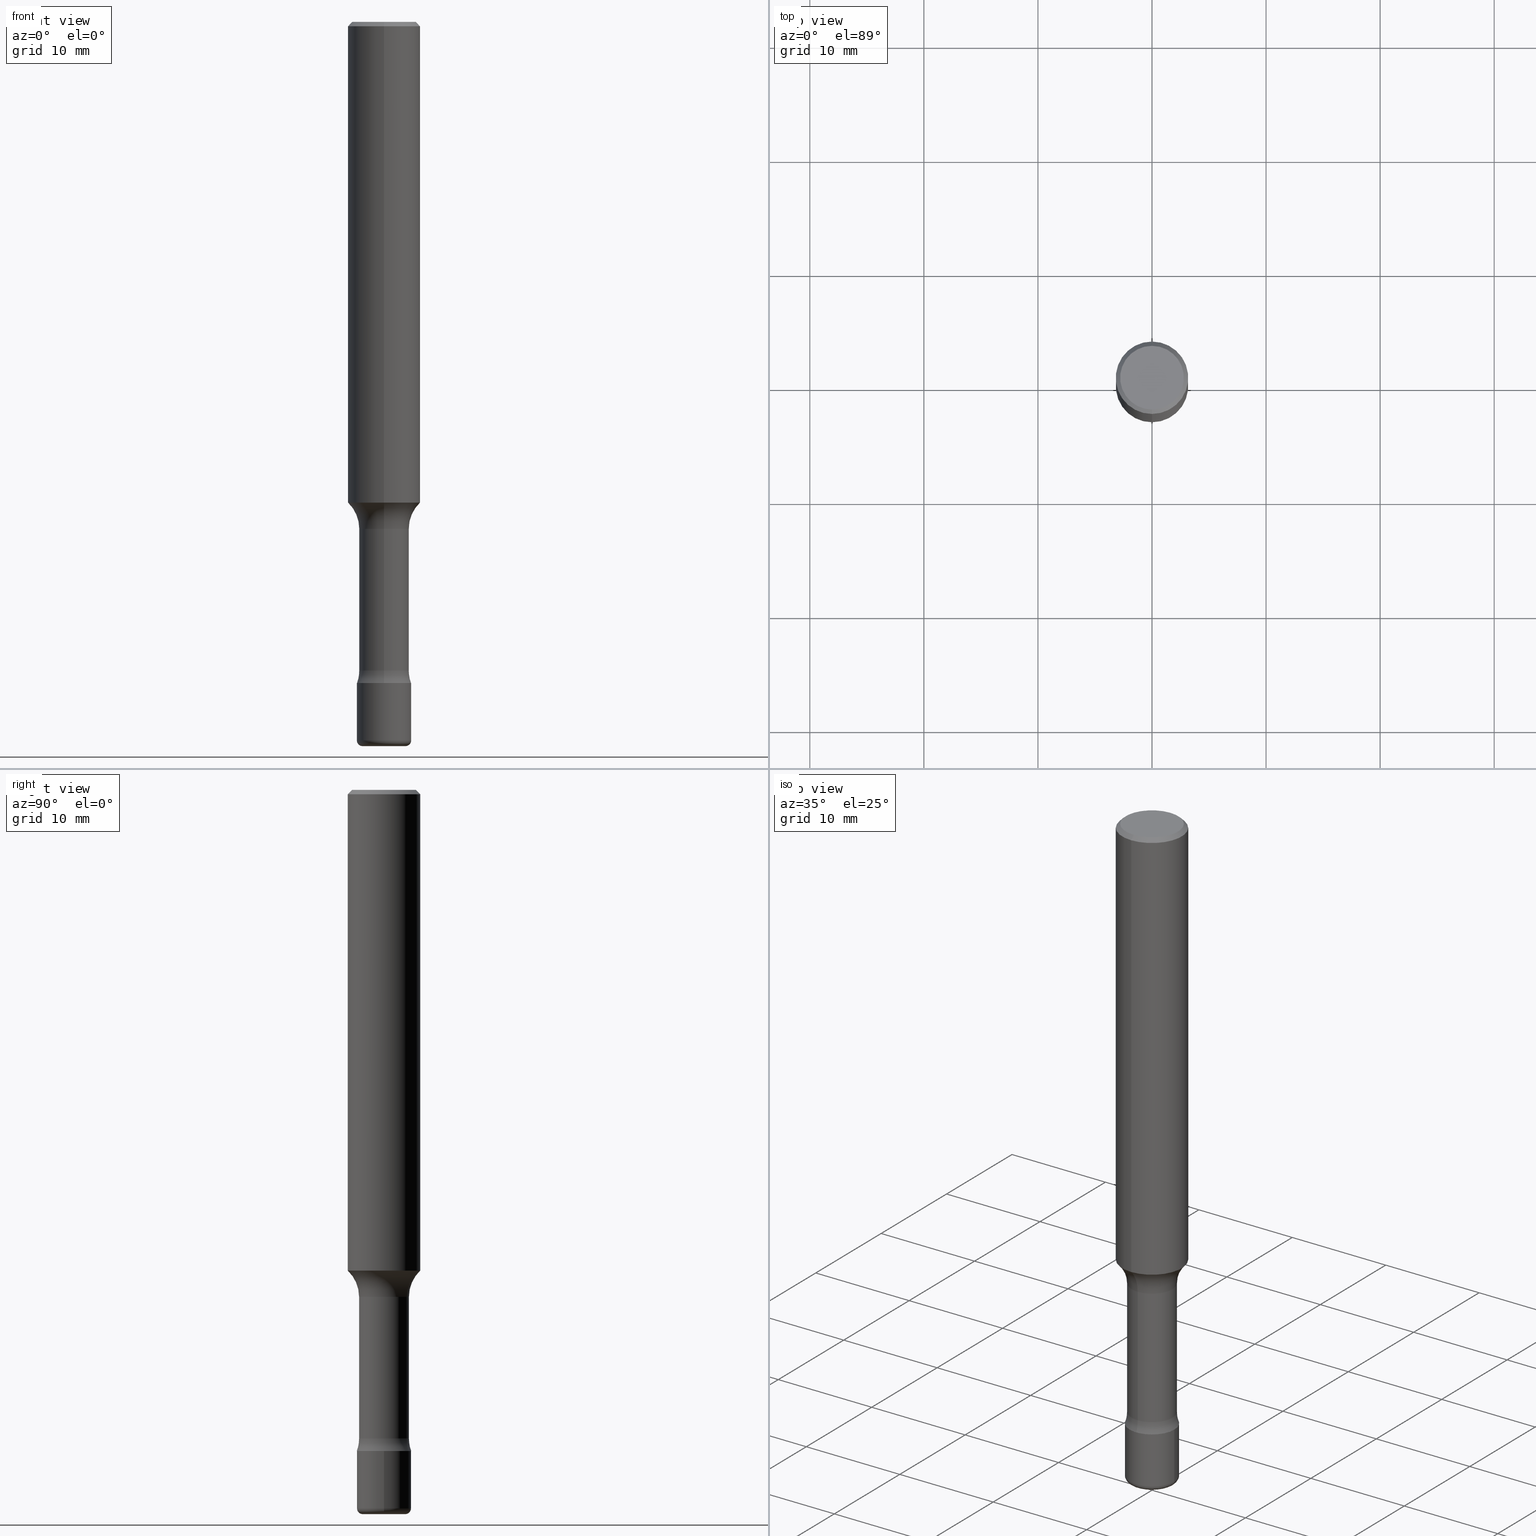
[diagram: canonical four-view strip — front | top / right | iso, engineering-drawing reading convention]
A machine part, canonical four-view strip (front | top / right | iso — engineering-drawing reading convention). The complete STEP part file that produces these views, byte-faithful:
ISO-10303-21;
HEADER;
FILE_DESCRIPTION (( 'STEP AP203' ),
    '1' );
FILE_NAME ('36781.STEP',
    '2024-03-04T12:38:45',
    ( '' ),
    ( '' ),
    'SwSTEP 2.0',
    'SolidWorks 2023',
    '' );
FILE_SCHEMA (( 'CONFIG_CONTROL_DESIGN' ));
ENDSEC;

DATA;
#1 = ORIENTED_EDGE ( 'NONE', *, *, #129, .T. ) ;
#2 = DIRECTION ( 'NONE',  ( -2.445815413942617356E-29, 3.490984976806744767E-15, 1.000000000000000000 ) ) ;
#3 = VERTEX_POINT ( 'NONE', #13 ) ;
#4 = CC_DESIGN_PERSON_AND_ORGANIZATION_ASSIGNMENT ( #232, #183, ( #230 ) ) ;
#5 = CARTESIAN_POINT ( 'NONE',  ( 7.496225862269470868E-16, 0.08599999999999387301, -1.750000000000000444 ) ) ;
#6 = CARTESIAN_POINT ( 'NONE',  ( -1.169113584055446105E-44, 1.669184350826100908E-30, 4.780733988912460139E-16 ) ) ;
#7 = VECTOR ( 'NONE', #10, 39.37007874015748143 ) ;
#8 = LINE ( 'NONE', #167, #488 ) ;
#9 = AXIS2_PLACEMENT_3D ( 'NONE', #157, #510, #436 ) ;
#10 = DIRECTION ( 'NONE',  ( 4.937700262164543309E-15, 0.7071067811865444641, -0.7071067811865505703 ) ) ;
#11 = DIRECTION ( 'NONE',  ( 7.105427357601001859E-15, 1.000000000000000000, 0.000000000000000000 ) ) ;
#12 = DIRECTION ( 'NONE',  ( 1.000000000000000000, -6.982962677686265922E-15, 4.876176775795935793E-29 ) ) ;
#13 = CARTESIAN_POINT ( 'NONE',  ( 6.661338147751496376E-16, 0.09374999999999200639, -2.282000000000000473 ) ) ;
#14 = CARTESIAN_POINT ( 'NONE',  ( 4.058307676616892084E-29, -5.792543071552269499E-15, -1.659286164230587390 ) ) ;
#15 = CONICAL_SURFACE ( 'NONE', #243, 0.1250000000000000000, 0.7853981633974473908 ) ;
#16 = DIRECTION ( 'NONE',  ( 2.445815413942617356E-29, -3.490984976806744767E-15, -1.000000000000000000 ) ) ;
#17 = DATE_TIME_ROLE ( 'classification_date' ) ;
#18 = EDGE_CURVE ( 'NONE', #31, #249, #446, .T. ) ;
#19 = ORIENTED_EDGE ( 'NONE', *, *, #117, .T. ) ;
#20 = DIRECTION ( 'NONE',  ( 1.000000000000000000, -6.982962677686256455E-15, 0.000000000000000000 ) ) ;
#21 = DIRECTION ( 'NONE',  ( -6.982962677686265922E-15, -1.000000000000000000, 4.370956789862821150E-15 ) ) ;
#22 = PERSON_AND_ORGANIZATION_ROLE ( 'creator' ) ;
#23 = AXIS2_PLACEMENT_3D ( 'NONE', #228, #287, #63 ) ;
#24 = EDGE_CURVE ( 'NONE', #306, #284, #410, .T. ) ;
#25 = CARTESIAN_POINT ( 'NONE',  ( 6.113672015462842613E-29, -8.728703347107866520E-15, -2.500000000000000444 ) ) ;
#26 = APPROVAL_ROLE ( '' ) ;
#27 = ADVANCED_FACE ( 'NONE', ( #254 ), #521, .F. ) ;
#28 = DIRECTION ( 'NONE',  ( -2.445815413942617356E-29, 3.490984976806744767E-15, 1.000000000000000000 ) ) ;
#29 = PERSON_AND_ORGANIZATION ( #217, #409 ) ;
#30 = CARTESIAN_POINT ( 'NONE',  ( 8.204981146281365554E-16, 0.1100000000000000283, -3.985137795026849284E-16 ) ) ;
#31 = VERTEX_POINT ( 'NONE', #54 ) ;
#32 = EDGE_LOOP ( 'NONE', ( #442, #206, #71, #474 ) ) ;
#33 =( GEOMETRIC_REPRESENTATION_CONTEXT ( 3 ) GLOBAL_UNCERTAINTY_ASSIGNED_CONTEXT ( ( #263 ) ) GLOBAL_UNIT_ASSIGNED_CONTEXT ( ( #465, #226, #353 ) ) REPRESENTATION_CONTEXT ( 'NONE', 'WORKASPACE' ) );
#34 = DIRECTION ( 'NONE',  ( 1.000000000000000000, -6.982962677686260400E-15, 0.000000000000000000 ) ) ;
#35 = ORIENTED_EDGE ( 'NONE', *, *, #137, .T. ) ;
#36 = ORIENTED_EDGE ( 'NONE', *, *, #215, .T. ) ;
#37 = DIRECTION ( 'NONE',  ( -2.445468806185136597E-29, 3.491481338843145583E-15, 1.000000000000000000 ) ) ;
#38 = EDGE_CURVE ( 'NONE', #31, #3, #381, .T. ) ;
#39 = ORIENTED_EDGE ( 'NONE', *, *, #186, .T. ) ;
#40 = EDGE_LOOP ( 'NONE', ( #39, #78, #355, #121 ) ) ;
#41 = TOROIDAL_SURFACE ( 'NONE', #297, 0.07375000000000000999, 0.02000000000000017042 ) ;
#42 = APPROVAL ( #421, 'UNSPECIFIED' ) ;
#43 = CARTESIAN_POINT ( 'NONE',  ( 5.474599102815097822E-29, -7.816276599718466484E-15, -2.238670593126607766 ) ) ;
#44 = AXIS2_PLACEMENT_3D ( 'NONE', #25, #154, #432 ) ;
#45 = VERTEX_POINT ( 'NONE', #341 ) ;
#46 = AXIS2_PLACEMENT_3D ( 'NONE', #308, #338, #100 ) ;
#47 = EDGE_CURVE ( 'NONE', #242, #484, #496, .T. ) ;
#48 = FACE_OUTER_BOUND ( 'NONE', #67, .T. ) ;
#49 = CIRCLE ( 'NONE', #120, 0.1100000000000000283 ) ;
#50 = CIRCLE ( 'NONE', #76, 0.1100000000000000283 ) ;
#51 = CC_DESIGN_PERSON_AND_ORGANIZATION_ASSIGNMENT ( #107, #266, ( #340 ) ) ;
#52 = CARTESIAN_POINT ( 'NONE',  ( 4.279570410823989044E-29, -6.110092342975505460E-15, -1.750000000000000222 ) ) ;
#53 = FACE_OUTER_BOUND ( 'NONE', #429, .T. ) ;
#54 = CARTESIAN_POINT ( 'NONE',  ( 6.110667527537350203E-16, 0.08599999999999224931, -2.238670593126608210 ) ) ;
#55 = CALENDAR_DATE ( 2024, 4, 3 ) ;
#56 = DIRECTION ( 'NONE',  ( 2.445815413942617075E-29, -3.490984976806744767E-15, -1.000000000000000000 ) ) ;
#57 = PLANE ( 'NONE',  #104 ) ;
#58 = VECTOR ( 'NONE', #223, 39.37007874015748143 ) ;
#59 = ORIENTED_EDGE ( 'NONE', *, *, #492, .T. ) ;
#60 = FACE_OUTER_BOUND ( 'NONE', #281, .T. ) ;
#61 = DIRECTION ( 'NONE',  ( -2.445815413942617356E-29, 3.490984976806744767E-15, 1.000000000000000000 ) ) ;
#62 = PERSON_AND_ORGANIZATION ( #217, #409 ) ;
#63 = DIRECTION ( 'NONE',  ( -6.982962677686265922E-15, -1.000000000000000000, 3.490984976806744767E-15 ) ) ;
#64 = APPROVAL_DATE_TIME ( #509, #42 ) ;
#65 = CIRCLE ( 'NONE', #44, 0.07375000000000000999 ) ;
#66 = CARTESIAN_POINT ( 'NONE',  ( 3.668723120913929659E-31, -5.236477465210122771E-17, -0.01500000000000001506 ) ) ;
#67 = EDGE_LOOP ( 'NONE', ( #363, #36, #79, #245 ) ) ;
#68 = DATE_AND_TIME ( #426, #364 ) ;
#69 = CARTESIAN_POINT ( 'NONE',  ( 0.09375000000000011102, -9.313526471364089937E-15, -2.480000000000000426 ) ) ;
#70 = ORIENTED_EDGE ( 'NONE', *, *, #186, .F. ) ;
#71 = ORIENTED_EDGE ( 'NONE', *, *, #134, .T. ) ;
#72 = DIRECTION ( 'NONE',  ( 2.445815413942617356E-29, -3.490984976806744767E-15, -1.000000000000000000 ) ) ;
#73 = ORIENTED_EDGE ( 'NONE', *, *, #314, .T. ) ;
#74 = ORIENTED_EDGE ( 'NONE', *, *, #504, .T. ) ;
#75 = ADVANCED_FACE ( 'NONE', ( #213 ), #302, .T. ) ;
#76 = AXIS2_PLACEMENT_3D ( 'NONE', #77, #467, #351 ) ;
#77 = CARTESIAN_POINT ( 'NONE',  ( 3.564331325213167551E-46, -5.040094789658283719E-32, -1.450543205394286918E-17 ) ) ;
#78 = ORIENTED_EDGE ( 'NONE', *, *, #325, .T. ) ;
#79 = ORIENTED_EDGE ( 'NONE', *, *, #47, .T. ) ;
#80 = CARTESIAN_POINT ( 'NONE',  ( -1.169113584055446105E-44, 1.669184350826100908E-30, 4.780733988912460139E-16 ) ) ;
#81 = VERTEX_POINT ( 'NONE', #172 ) ;
#82 = CC_DESIGN_PERSON_AND_ORGANIZATION_ASSIGNMENT ( #62, #22, ( #230 ) ) ;
#83 = CARTESIAN_POINT ( 'NONE',  ( 0.09375000000000002776, -6.546527510330876027E-16, 4.571415727308691207E-30 ) ) ;
#84 = ORIENTED_EDGE ( 'NONE', *, *, #305, .F. ) ;
#85 = CONICAL_SURFACE ( 'NONE', #140, 0.1250000000000000000, 0.7853981633974473908 ) ;
#86 = ADVANCED_FACE ( 'NONE', ( #336 ), #41, .T. ) ;
#87 = CYLINDRICAL_SURFACE ( 'NONE', #450, 0.1250000000000000000 ) ;
#88 = AXIS2_PLACEMENT_3D ( 'NONE', #362, #207, #164 ) ;
#89 = EDGE_CURVE ( 'NONE', #484, #284, #202, .T. ) ;
#90 = CARTESIAN_POINT ( 'NONE',  ( 8.728703347107836346E-16, 0.1249999999999999445, -0.01500000000000045047 ) ) ;
#91 = AXIS2_PLACEMENT_3D ( 'NONE', #388, #28, #237 ) ;
#92 = CC_DESIGN_SECURITY_CLASSIFICATION ( #340, ( #230 ) ) ;
#93 = FACE_OUTER_BOUND ( 'NONE', #437, .T. ) ;
#94 = AXIS2_PLACEMENT_3D ( 'NONE', #222, #56, #219 ) ;
#95 = DIRECTION ( 'NONE',  ( 1.000000000000000000, -6.982962677686269077E-15, 4.883557194083113462E-29 ) ) ;
#96 = COORDINATED_UNIVERSAL_TIME_OFFSET ( 5, 0, .BEHIND. ) ;
#97 = DIRECTION ( 'NONE',  ( 1.000000000000000000, -6.982962677686261189E-15, 0.000000000000000000 ) ) ;
#98 = EDGE_CURVE ( 'NONE', #238, #484, #415, .T. ) ;
#99 = DIRECTION ( 'NONE',  ( 1.000000000000000000, -7.105427357601001070E-15, 4.926309429860291398E-29 ) ) ;
#100 = DIRECTION ( 'NONE',  ( 1.000000000000000000, -6.982962677686269077E-15, 4.883557194083113462E-29 ) ) ;
#101 = ADVANCED_FACE ( 'NONE', ( #378 ), #342, .T. ) ;
#102 = CIRCLE ( 'NONE', #318, 0.08599999999999997924 ) ;
#103 = APPLICATION_PROTOCOL_DEFINITION ( 'international standard', 'config_control_design', 1994, #397 ) ;
#104 = AXIS2_PLACEMENT_3D ( 'NONE', #220, #179, #503 ) ;
#105 = DIRECTION ( 'NONE',  ( -2.445468806185136597E-29, 3.491481338843145583E-15, 1.000000000000000000 ) ) ;
#106 = PERSON_AND_ORGANIZATION ( #217, #409 ) ;
#107 = PERSON_AND_ORGANIZATION ( #217, #409 ) ;
#108 = LINE ( 'NONE', #276, #339 ) ;
#109 = CALENDAR_DATE ( 2024, 4, 3 ) ;
#110 = TOROIDAL_SURFACE ( 'NONE', #375, 0.2110000000000000764, 0.1250000000000000000 ) ;
#111 = FACE_OUTER_BOUND ( 'NONE', #316, .T. ) ;
#112 = ORIENTED_EDGE ( 'NONE', *, *, #376, .T. ) ;
#113 = CALENDAR_DATE ( 2024, 4, 3 ) ;
#114 = DIRECTION ( 'NONE',  ( 7.105427357601001859E-15, 1.000000000000000000, -3.491481338843145583E-15 ) ) ;
#115 = ORIENTED_EDGE ( 'NONE', *, *, #18, .T. ) ;
#116 = ORIENTED_EDGE ( 'NONE', *, *, #174, .T. ) ;
#117 = EDGE_CURVE ( 'NONE', #306, #238, #49, .T. ) ;
#118 = CARTESIAN_POINT ( 'NONE',  ( -8.728703347107426139E-16, -0.1250000000000057732, -1.659286164230586946 ) ) ;
#119 = ORIENTED_EDGE ( 'NONE', *, *, #18, .F. ) ;
#120 = AXIS2_PLACEMENT_3D ( 'NONE', #301, #138, #173 ) ;
#121 = ORIENTED_EDGE ( 'NONE', *, *, #134, .F. ) ;
#122 = AXIS2_PLACEMENT_3D ( 'NONE', #390, #475, #189 ) ;
#123 = DIRECTION ( 'NONE',  ( -6.982962677686265922E-15, -1.000000000000000000, 3.176567434493326407E-15 ) ) ;
#124 = VERTEX_POINT ( 'NONE', #177 ) ;
#125 = CIRCLE ( 'NONE', #481, 0.1250000000000000000 ) ;
#126 = ORIENTED_EDGE ( 'NONE', *, *, #273, .F. ) ;
#127 = ADVANCED_FACE ( 'NONE', ( #455 ), #85, .T. ) ;
#128 = DIRECTION ( 'NONE',  ( -1.000000000000000000, 6.982962677686265922E-15, -4.883557194083112340E-29 ) ) ;
#129 = EDGE_CURVE ( 'NONE', #285, #3, #166, .T. ) ;
#130 = VECTOR ( 'NONE', #451, 39.37007874015748143 ) ;
#131 = CARTESIAN_POINT ( 'NONE',  ( 3.668723120913929659E-31, -5.236477465210122771E-17, -0.01500000000000001506 ) ) ;
#132 = CC_DESIGN_APPROVAL ( #291, ( #230 ) ) ;
#133 = CARTESIAN_POINT ( 'NONE',  ( -0.07375000000000000999, -8.098708992520349451E-15, -2.500000000000000444 ) ) ;
#134 = EDGE_CURVE ( 'NONE', #124, #377, #212, .T. ) ;
#135 = CARTESIAN_POINT ( 'NONE',  ( -8.728703347107832402E-16, -0.1250000000000000000, 9.144465209920891591E-16 ) ) ;
#136 = CARTESIAN_POINT ( 'NONE',  ( 6.113672015462842613E-29, -8.728703347107866520E-15, -2.500000000000000444 ) ) ;
#137 = EDGE_CURVE ( 'NONE', #242, #45, #125, .T. ) ;
#138 = DIRECTION ( 'NONE',  ( -2.445815413942617356E-29, 3.490984976806744767E-15, 1.000000000000000000 ) ) ;
#139 = APPLICATION_PROTOCOL_DEFINITION ( 'international standard', 'config_control_design', 1994, #431 ) ;
#140 = AXIS2_PLACEMENT_3D ( 'NONE', #260, #16, #347 ) ;
#141 = CARTESIAN_POINT ( 'NONE',  ( 5.581350774617052154E-29, -7.966427717072992329E-15, -2.282000000000000028 ) ) ;
#142 = LOCAL_TIME ( 7, 38, 45.00000000000000000, #471 ) ;
#143 = CALENDAR_DATE ( 2024, 4, 3 ) ;
#144 = FACE_OUTER_BOUND ( 'NONE', #32, .T. ) ;
#145 = DIRECTION ( 'NONE',  ( -2.445815413942617356E-29, 3.490984976806744767E-15, 1.000000000000000000 ) ) ;
#146 = COORDINATED_UNIVERSAL_TIME_OFFSET ( 5, 0, .BEHIND. ) ;
#147 = ORIENTED_EDGE ( 'NONE', *, *, #332, .F. ) ;
#148 = LENGTH_MEASURE_WITH_UNIT ( LENGTH_MEASURE( 0.02539999999999999897 ), #188 );
#149 = EDGE_CURVE ( 'NONE', #45, #440, #497, .T. ) ;
#150 = AXIS2_PLACEMENT_3D ( 'NONE', #443, #403, #367 ) ;
#151 = PLANE ( 'NONE',  #23 ) ;
#152 = ORIENTED_EDGE ( 'NONE', *, *, #262, .T. ) ;
#153 = ORIENTED_EDGE ( 'NONE', *, *, #359, .F. ) ;
#154 = DIRECTION ( 'NONE',  ( -2.445468806185136597E-29, 3.491481338843145583E-15, 1.000000000000000000 ) ) ;
#155 = ORIENTED_EDGE ( 'NONE', *, *, #416, .T. ) ;
#156 = ORIENTED_EDGE ( 'NONE', *, *, #117, .F. ) ;
#157 = CARTESIAN_POINT ( 'NONE',  ( -1.473405124991747829E-15, -0.2110000000000079035, -2.238670593126606878 ) ) ;
#158 = AXIS2_PLACEMENT_3D ( 'NONE', #296, #370, #454 ) ;
#159 = VECTOR ( 'NONE', #428, 39.37007874015748143 ) ;
#160 = CIRCLE ( 'NONE', #329, 0.09375000000000001388 ) ;
#161 = ORIENTED_EDGE ( 'NONE', *, *, #47, .F. ) ;
#162 = DIRECTION ( 'NONE',  ( -6.982962677686266711E-15, -1.000000000000000000, 3.176567434493329957E-15 ) ) ;
#163 = VERTEX_POINT ( 'NONE', #176 ) ;
#164 = DIRECTION ( 'NONE',  ( -6.982962677686265133E-15, -1.000000000000000000, 3.490984976806744373E-15 ) ) ;
#165 = DIRECTION ( 'NONE',  ( -2.445815413942617356E-29, 3.490984976806744767E-15, 1.000000000000000000 ) ) ;
#166 = CIRCLE ( 'NONE', #460, 0.09374999999999997224 ) ;
#167 = CARTESIAN_POINT ( 'NONE',  ( 6.110667527536862095E-16, 0.08600000000000002087, 1.778486908858659326E-16 ) ) ;
#168 = CIRCLE ( 'NONE', #328, 0.08599999999999997924 ) ;
#169 = ADVANCED_FACE ( 'NONE', ( #144 ), #275, .T. ) ;
#170 = CARTESIAN_POINT ( 'NONE',  ( 1.499245172453866564E-15, 0.2109999999999922771, -2.238670593126608654 ) ) ;
#171 = CC_DESIGN_DATE_AND_TIME_ASSIGNMENT ( #461, #386, ( #508 ) ) ;
#172 = CARTESIAN_POINT ( 'NONE',  ( 0.09375000000000001388, -8.622213166273146125E-15, -2.282000000000000028 ) ) ;
#173 = DIRECTION ( 'NONE',  ( -6.982962677686265922E-15, -1.000000000000000000, 3.490984976806744373E-15 ) ) ;
#174 = EDGE_CURVE ( 'NONE', #317, #81, #160, .T. ) ;
#175 = DIRECTION ( 'NONE',  ( -6.982962677686265133E-15, -1.000000000000000000, 3.490984976806744373E-15 ) ) ;
#176 = CARTESIAN_POINT ( 'NONE',  ( -0.09375000000000011102, -7.992739905555907720E-15, -2.480000000000000426 ) ) ;
#177 = CARTESIAN_POINT ( 'NONE',  ( 0.07375000000000000999, -9.243696844587228217E-15, -2.500000000000000444 ) ) ;
#178 = PERSON_AND_ORGANIZATION ( #217, #409 ) ;
#179 = DIRECTION ( 'NONE',  ( 2.438088387897960049E-29, -3.491481338843145188E-15, -1.000000000000000000 ) ) ;
#180 = CARTESIAN_POINT ( 'NONE',  ( -6.005347902809759284E-16, -0.08600000000000609934, -1.750000000000000000 ) ) ;
#181 = ADVANCED_FACE ( 'NONE', ( #60 ), #379, .F. ) ;
#182 = CIRCLE ( 'NONE', #466, 0.1250000000000000000 ) ;
#183 = PERSON_AND_ORGANIZATION_ROLE ( 'design_supplier' ) ;
#184 = CARTESIAN_POINT ( 'NONE',  ( -6.546527510330312978E-16, -0.09375000000000795197, -2.282000000000000028 ) ) ;
#185 = FACE_OUTER_BOUND ( 'NONE', #396, .T. ) ;
#186 = EDGE_CURVE ( 'NONE', #124, #203, #294, .T. ) ;
#187 = EDGE_LOOP ( 'NONE', ( #35, #321, #270, #161 ) ) ;
#188 =( LENGTH_UNIT ( ) NAMED_UNIT ( * ) SI_UNIT ( $, .METRE. ) );
#189 = DIRECTION ( 'NONE',  ( 1.000000000000000000, -6.982962677686265922E-15, 4.876176775795935793E-29 ) ) ;
#190 = VERTEX_POINT ( 'NONE', #180 ) ;
#191 = ADVANCED_FACE ( 'NONE', ( #258 ), #57, .T. ) ;
#192 = ORIENTED_EDGE ( 'NONE', *, *, #470, .F. ) ;
#193 = LOCAL_TIME ( 7, 38, 45.00000000000000000, #146 ) ;
#194 = FACE_OUTER_BOUND ( 'NONE', #187, .T. ) ;
#195 = ORIENTED_EDGE ( 'NONE', *, *, #149, .F. ) ;
#196 = ORIENTED_EDGE ( 'NONE', *, *, #236, .T. ) ;
#197 = CARTESIAN_POINT ( 'NONE',  ( -6.005347902809646871E-16, -0.08600000000000788958, -2.238670593126607766 ) ) ;
#198 = ORIENTED_EDGE ( 'NONE', *, *, #492, .F. ) ;
#199 = ORIENTED_EDGE ( 'NONE', *, *, #209, .T. ) ;
#200 = DIRECTION ( 'NONE',  ( -2.445815413942617356E-29, 3.490984976806744767E-15, 1.000000000000000000 ) ) ;
#201 = PRODUCT_RELATED_PRODUCT_CATEGORY ( 'detail', '', ( #310 ) ) ;
#202 = CIRCLE ( 'NONE', #491, 0.1250000000000000000 ) ;
#203 = VERTEX_POINT ( 'NONE', #133 ) ;
#204 = CIRCLE ( 'NONE', #402, 0.1250000000000000000 ) ;
#205 = DIRECTION ( 'NONE',  ( -6.982962677686265133E-15, -1.000000000000000000, 3.490984976806744373E-15 ) ) ;
#206 = ORIENTED_EDGE ( 'NONE', *, *, #359, .T. ) ;
#207 = DIRECTION ( 'NONE',  ( -2.445815413942617356E-29, 3.490984976806744767E-15, 1.000000000000000000 ) ) ;
#208 = CYLINDRICAL_SURFACE ( 'NONE', #424, 0.08600000000000002087 ) ;
#209 = EDGE_CURVE ( 'NONE', #81, #317, #311, .T. ) ;
#210 = VECTOR ( 'NONE', #248, 39.37007874015748143 ) ;
#211 = AXIS2_PLACEMENT_3D ( 'NONE', #507, #145, #123 ) ;
#212 = CIRCLE ( 'NONE', #295, 0.02000000000000018083 ) ;
#213 = FACE_OUTER_BOUND ( 'NONE', #241, .T. ) ;
#214 = CARTESIAN_POINT ( 'NONE',  ( 4.058307676616892084E-29, -5.792543071552269499E-15, -1.659286164230587390 ) ) ;
#215 = EDGE_CURVE ( 'NONE', #45, #242, #404, .T. ) ;
#216 = DIRECTION ( 'NONE',  ( -6.982962677686265922E-15, -1.000000000000000000, 3.176567434493326407E-15 ) ) ;
#217 = PERSON ( 'UNSPECIFIED', 'UNSPECIFIED', 'UNSPECIFIED', ('UNSPECIFIED'), ('UNSPECIFIED'), ('UNSPECIFIED') ) ;
#218 = CC_DESIGN_DATE_AND_TIME_ASSIGNMENT ( #279, #17, ( #340 ) ) ;
#219 = DIRECTION ( 'NONE',  ( 6.982962677686265922E-15, 1.000000000000000000, -3.490984976806744767E-15 ) ) ;
#220 = CARTESIAN_POINT ( 'NONE',  ( 5.149934974794233263E-16, 0.07374999999999129474, -2.500000000000000000 ) ) ;
#221 = ORIENTED_EDGE ( 'NONE', *, *, #38, .T. ) ;
#222 = CARTESIAN_POINT ( 'NONE',  ( 7.681258945454894762E-16, 0.1100000000000000283, -1.522243640300903790E-16 ) ) ;
#223 = DIRECTION ( 'NONE',  ( -2.445815413942617636E-29, 3.490984976806744767E-15, 1.000000000000000000 ) ) ;
#224 = ADVANCED_FACE ( 'NONE', ( #93 ), #286, .F. ) ;
#225 = DIRECTION ( 'NONE',  ( 7.105427357601001859E-15, 1.000000000000000000, 0.000000000000000000 ) ) ;
#226 =( NAMED_UNIT ( * ) PLANE_ANGLE_UNIT ( ) SI_UNIT ( $, .RADIAN. ) );
#227 = CLOSED_SHELL ( 'NONE', ( #75, #86, #233, #191, #169, #101 ) ) ;
#228 = CARTESIAN_POINT ( 'NONE',  ( 6.546527510331433160E-16, 0.09374999999999203415, -2.282000000000000473 ) ) ;
#229 = ORIENTED_EDGE ( 'NONE', *, *, #98, .F. ) ;
#230 = PRODUCT_DEFINITION_FORMATION_WITH_SPECIFIED_SOURCE ( 'ANY', '', #310, .NOT_KNOWN. ) ;
#231 = APPROVAL_PERSON_ORGANIZATION ( #178, #383, #452 ) ;
#232 = PERSON_AND_ORGANIZATION ( #217, #409 ) ;
#233 = ADVANCED_FACE ( 'NONE', ( #53 ), #472, .T. ) ;
#234 = CYLINDRICAL_SURFACE ( 'NONE', #91, 0.08600000000000002087 ) ;
#235 = APPROVAL_DATE_TIME ( #68, #291 ) ;
#236 = EDGE_CURVE ( 'NONE', #377, #163, #307, .T. ) ;
#237 = DIRECTION ( 'NONE',  ( -6.982962677686265922E-15, -1.000000000000000000, 3.490984976806745162E-15 ) ) ;
#238 = VERTEX_POINT ( 'NONE', #244 ) ;
#239 = ORIENTED_EDGE ( 'NONE', *, *, #98, .T. ) ;
#240 = FACE_OUTER_BOUND ( 'NONE', #517, .T. ) ;
#241 = EDGE_LOOP ( 'NONE', ( #196, #288, #430, #401 ) ) ;
#242 = VERTEX_POINT ( 'NONE', #118 ) ;
#243 = AXIS2_PLACEMENT_3D ( 'NONE', #349, #72, #464 ) ;
#244 = CARTESIAN_POINT ( 'NONE',  ( -8.061085147381547495E-16, -0.1100000000000000283, 3.695029153947991038E-16 ) ) ;
#245 = ORIENTED_EDGE ( 'NONE', *, *, #314, .F. ) ;
#246 = EDGE_LOOP ( 'NONE', ( #70, #153 ) ) ;
#247 = ORIENTED_EDGE ( 'NONE', *, *, #137, .F. ) ;
#248 = DIRECTION ( 'NONE',  ( -2.445468806185136877E-29, 3.491481338843145188E-15, 1.000000000000000000 ) ) ;
#249 = VERTEX_POINT ( 'NONE', #197 ) ;
#250 = CIRCLE ( 'NONE', #9, 0.1250000000000000000 ) ;
#251 = ADVANCED_FACE ( 'NONE', ( #194 ), #395, .T. ) ;
#252 = FACE_OUTER_BOUND ( 'NONE', #519, .T. ) ;
#253 = AXIS2_PLACEMENT_3D ( 'NONE', #506, #255, #411 ) ;
#254 = FACE_OUTER_BOUND ( 'NONE', #480, .T. ) ;
#255 = DIRECTION ( 'NONE',  ( -2.445815413942617356E-29, 3.490984976806744767E-15, 1.000000000000000000 ) ) ;
#256 = DIRECTION ( 'NONE',  ( -2.445815413942617356E-29, 3.490984976806744767E-15, 1.000000000000000000 ) ) ;
#257 = DIRECTION ( 'NONE',  ( -4.851104656540959542E-15, -0.7071067811865493491, -0.7071067811865456854 ) ) ;
#258 = FACE_OUTER_BOUND ( 'NONE', #246, .T. ) ;
#259 = AXIS2_PLACEMENT_3D ( 'NONE', #313, #114, #280 ) ;
#260 = CARTESIAN_POINT ( 'NONE',  ( 3.668723120913929659E-31, -5.236477465210122771E-17, -0.01500000000000001506 ) ) ;
#261 = MECHANICAL_CONTEXT ( 'NONE', #397, 'mechanical' ) ;
#262 = EDGE_CURVE ( 'NONE', #249, #285, #250, .T. ) ;
#263 = UNCERTAINTY_MEASURE_WITH_UNIT (LENGTH_MEASURE( 1.000000000000000082E-05 ), #465, 'distance_accuracy_value', 'NONE');
#264 = DIRECTION ( 'NONE',  ( 1.000000000000000000, -6.982962677686261189E-15, 0.000000000000000000 ) ) ;
#265 = COORDINATED_UNIVERSAL_TIME_OFFSET ( 5, 0, .BEHIND. ) ;
#266 = PERSON_AND_ORGANIZATION_ROLE ( 'classification_officer' ) ;
#267 = CC_DESIGN_PERSON_AND_ORGANIZATION_ASSIGNMENT ( #274, #505, ( #508 ) ) ;
#268 = VECTOR ( 'NONE', #257, 39.37007874015748143 ) ;
#269 = LINE ( 'NONE', #425, #159 ) ;
#270 = ORIENTED_EDGE ( 'NONE', *, *, #89, .F. ) ;
#271 = CIRCLE ( 'NONE', #211, 0.08600000000000007638 ) ;
#272 = LOCAL_TIME ( 7, 38, 45.00000000000000000, #389 ) ;
#273 = EDGE_CURVE ( 'NONE', #249, #31, #271, .T. ) ;
#274 = PERSON_AND_ORGANIZATION ( #217, #409 ) ;
#275 = TOROIDAL_SURFACE ( 'NONE', #46, 0.07375000000000000999, 0.02000000000000017042 ) ;
#276 = CARTESIAN_POINT ( 'NONE',  ( -0.09375000000000002776, 6.661338147750941215E-16, -4.611501647113975397E-30 ) ) ;
#277 = ORIENTED_EDGE ( 'NONE', *, *, #38, .F. ) ;
#278 = EDGE_LOOP ( 'NONE', ( #514, #74, #290, #352 ) ) ;
#279 = DATE_AND_TIME ( #113, #272 ) ;
#280 = DIRECTION ( 'NONE',  ( -1.000000000000000000, 7.105427357601008170E-15, 0.000000000000000000 ) ) ;
#281 = EDGE_LOOP ( 'NONE', ( #19, #358 ) ) ;
#282 = AXIS2_PLACEMENT_3D ( 'NONE', #170, #99, #11 ) ;
#283 = DIRECTION ( 'NONE',  ( -2.445815413942617356E-29, 3.490984976806744767E-15, 1.000000000000000000 ) ) ;
#284 = VERTEX_POINT ( 'NONE', #477 ) ;
#285 = VERTEX_POINT ( 'NONE', #184 ) ;
#286 = TOROIDAL_SURFACE ( 'NONE', #253, 0.2110000000000000764, 0.1250000000000000000 ) ;
#287 = DIRECTION ( 'NONE',  ( -2.445815413942617075E-29, 3.490984976806744767E-15, 1.000000000000000000 ) ) ;
#288 = ORIENTED_EDGE ( 'NONE', *, *, #372, .T. ) ;
#289 = DIRECTION ( 'NONE',  ( -6.982962677686265922E-15, -1.000000000000000000, 3.490984976806744767E-15 ) ) ;
#290 = ORIENTED_EDGE ( 'NONE', *, *, #462, .T. ) ;
#291 = APPROVAL ( #382, 'UNSPECIFIED' ) ;
#292 = DIRECTION ( 'NONE',  ( -6.982962677686266711E-15, -1.000000000000000000, 0.000000000000000000 ) ) ;
#293 = ADVANCED_FACE ( 'NONE', ( #326 ), #151, .F. ) ;
#294 = CIRCLE ( 'NONE', #356, 0.07375000000000000999 ) ;
#295 = AXIS2_PLACEMENT_3D ( 'NONE', #420, #453, #304 ) ;
#296 = CARTESIAN_POINT ( 'NONE',  ( 0.000000000000000000, 0.000000000000000000, 0.000000000000000000 ) ) ;
#297 = AXIS2_PLACEMENT_3D ( 'NONE', #337, #300, #95 ) ;
#298 = AXIS2_PLACEMENT_3D ( 'NONE', #14, #61, #380 ) ;
#299 = AXIS2_PLACEMENT_3D ( 'NONE', #323, #486, #400 ) ;
#300 = DIRECTION ( 'NONE',  ( -2.445468806185136597E-29, 3.491481338843145583E-15, 1.000000000000000000 ) ) ;
#301 = CARTESIAN_POINT ( 'NONE',  ( 3.564331325213167551E-46, -5.040094789658283719E-32, -1.450543205394286918E-17 ) ) ;
#302 = CYLINDRICAL_SURFACE ( 'NONE', #158, 0.09375000000000002776 ) ;
#303 = CARTESIAN_POINT ( 'NONE',  ( 0.000000000000000000, 0.000000000000000000, 0.000000000000000000 ) ) ;
#304 = DIRECTION ( 'NONE',  ( 1.000000000000000000, -6.982962677686269077E-15, 0.000000000000000000 ) ) ;
#305 = EDGE_CURVE ( 'NONE', #190, #440, #102, .T. ) ;
#306 = VERTEX_POINT ( 'NONE', #30 ) ;
#307 = CIRCLE ( 'NONE', #419, 0.09375000000000002776 ) ;
#308 = CARTESIAN_POINT ( 'NONE',  ( 6.064762639339139522E-29, -8.658873720331001644E-15, -2.480000000000000426 ) ) ;
#309 = DIRECTION ( 'NONE',  ( 0.000000000000000000, 0.000000000000000000, 1.000000000000000000 ) ) ;
#310 = PRODUCT ( '36781', '36781', '', ( #261 ) ) ;
#311 = CIRCLE ( 'NONE', #515, 0.09375000000000001388 ) ;
#312 = SECURITY_CLASSIFICATION_LEVEL ( 'unclassified' ) ;
#313 = CARTESIAN_POINT ( 'NONE',  ( -0.07375000000000000999, -8.134848452707927884E-15, -2.480000000000000426 ) ) ;
#314 = EDGE_CURVE ( 'NONE', #284, #484, #182, .T. ) ;
#315 = DIRECTION ( 'NONE',  ( -2.445468806185136877E-29, 3.491481338843145188E-15, 1.000000000000000000 ) ) ;
#316 = EDGE_LOOP ( 'NONE', ( #147, #239, #366, #331 ) ) ;
#317 = VERTEX_POINT ( 'NONE', #516 ) ;
#318 = AXIS2_PLACEMENT_3D ( 'NONE', #393, #320, #357 ) ;
#319 = APPROVAL_ROLE ( '' ) ;
#320 = DIRECTION ( 'NONE',  ( -2.445815413942617356E-29, 3.490984976806744767E-15, 1.000000000000000000 ) ) ;
#321 = ORIENTED_EDGE ( 'NONE', *, *, #520, .T. ) ;
#322 = EDGE_LOOP ( 'NONE', ( #473, #502 ) ) ;
#323 = CARTESIAN_POINT ( 'NONE',  ( 5.581350774617052154E-29, -7.966427717072992329E-15, -2.282000000000000028 ) ) ;
#324 = ORIENTED_EDGE ( 'NONE', *, *, #24, .T. ) ;
#325 = EDGE_CURVE ( 'NONE', #203, #163, #478, .T. ) ;
#326 = FACE_OUTER_BOUND ( 'NONE', #322, .T. ) ;
#327 = ORIENTED_EDGE ( 'NONE', *, *, #376, .F. ) ;
#328 = AXIS2_PLACEMENT_3D ( 'NONE', #365, #2, #162 ) ;
#329 = AXIS2_PLACEMENT_3D ( 'NONE', #422, #494, #97 ) ;
#330 = CARTESIAN_POINT ( 'NONE',  ( -8.575622497214409523E-16, -0.1250000000000000555, -0.01499999999999957964 ) ) ;
#331 = ORIENTED_EDGE ( 'NONE', *, *, #24, .F. ) ;
#332 = EDGE_CURVE ( 'NONE', #238, #306, #50, .T. ) ;
#333 = DIRECTION ( 'NONE',  ( -6.982962677686265922E-15, -1.000000000000000000, 3.490984976806745162E-15 ) ) ;
#334 = CC_DESIGN_APPROVAL ( #42, ( #508 ) ) ;
#335 = DIRECTION ( 'NONE',  ( -2.445815413942617636E-29, 3.490984976806744767E-15, 1.000000000000000000 ) ) ;
#336 = FACE_OUTER_BOUND ( 'NONE', #40, .T. ) ;
#337 = CARTESIAN_POINT ( 'NONE',  ( 6.064762639339139522E-29, -8.658873720331001644E-15, -2.480000000000000426 ) ) ;
#338 = DIRECTION ( 'NONE',  ( -2.445468806185136597E-29, 3.491481338843145583E-15, 1.000000000000000000 ) ) ;
#339 = VECTOR ( 'NONE', #315, 39.37007874015748143 ) ;
#340 = SECURITY_CLASSIFICATION ( '', '', #312 ) ;
#341 = CARTESIAN_POINT ( 'NONE',  ( 8.881784197001654642E-16, 0.1249999999999941713, -1.659286164230588057 ) ) ;
#342 = CYLINDRICAL_SURFACE ( 'NONE', #348, 0.09375000000000002776 ) ;
#343 = EDGE_LOOP ( 'NONE', ( #277, #126, #152, #1 ) ) ;
#344 = CARTESIAN_POINT ( 'NONE',  ( -8.575622497214409523E-16, -0.1250000000000000555, -0.01499999999999957964 ) ) ;
#345 = CARTESIAN_POINT ( 'NONE',  ( 0.000000000000000000, 0.000000000000000000, 0.000000000000000000 ) ) ;
#346 = PRODUCT_DEFINITION_SHAPE ( 'NONE', 'NONE',  #508 ) ;
#347 = DIRECTION ( 'NONE',  ( 6.982962677686265922E-15, 1.000000000000000000, -3.483106191921935554E-15 ) ) ;
#348 = AXIS2_PLACEMENT_3D ( 'NONE', #303, #371, #12 ) ;
#349 = CARTESIAN_POINT ( 'NONE',  ( 3.668723120913929659E-31, -5.236477465210122771E-17, -0.01500000000000001506 ) ) ;
#350 = PERSON_AND_ORGANIZATION ( #217, #409 ) ;
#351 = DIRECTION ( 'NONE',  ( -6.982962677686265922E-15, -1.000000000000000000, 3.490984976806744373E-15 ) ) ;
#352 = ORIENTED_EDGE ( 'NONE', *, *, #174, .F. ) ;
#353 =( NAMED_UNIT ( * ) SI_UNIT ( $, .STERADIAN. ) SOLID_ANGLE_UNIT ( ) );
#354 = DIRECTION ( 'NONE',  ( -6.982962677686265922E-15, -1.000000000000000000, 3.490984976806744767E-15 ) ) ;
#355 = ORIENTED_EDGE ( 'NONE', *, *, #236, .F. ) ;
#356 = AXIS2_PLACEMENT_3D ( 'NONE', #136, #448, #20 ) ;
#357 = DIRECTION ( 'NONE',  ( -6.982962677686266711E-15, -1.000000000000000000, 3.176567434493329957E-15 ) ) ;
#358 = ORIENTED_EDGE ( 'NONE', *, *, #332, .T. ) ;
#359 = EDGE_CURVE ( 'NONE', #203, #124, #65, .T. ) ;
#360 = CARTESIAN_POINT ( 'NONE',  ( -1.169113584055446105E-44, 1.669184350826100908E-30, 4.780733988912460139E-16 ) ) ;
#361 = CC_DESIGN_PERSON_AND_ORGANIZATION_ASSIGNMENT ( #350, #457, ( #310 ) ) ;
#362 = CARTESIAN_POINT ( 'NONE',  ( 4.279570410823989044E-29, -6.110092342975505460E-15, -1.750000000000000222 ) ) ;
#363 = ORIENTED_EDGE ( 'NONE', *, *, #520, .F. ) ;
#364 = LOCAL_TIME ( 7, 38, 45.00000000000000000, #265 ) ;
#365 = CARTESIAN_POINT ( 'NONE',  ( 4.280176974399580513E-29, -6.109223709411804427E-15, -1.750000000000000222 ) ) ;
#366 = ORIENTED_EDGE ( 'NONE', *, *, #89, .T. ) ;
#367 = DIRECTION ( 'NONE',  ( 1.000000000000000000, -6.982962677686260400E-15, 0.000000000000000000 ) ) ;
#368 = AXIS2_PLACEMENT_3D ( 'NONE', #345, #309, #501 ) ;
#369 = ADVANCED_FACE ( 'NONE', ( #111 ), #15, .T. ) ;
#370 = DIRECTION ( 'NONE',  ( -2.445468806185136597E-29, 3.491481338843145583E-15, 1.000000000000000000 ) ) ;
#371 = DIRECTION ( 'NONE',  ( -2.445468806185136597E-29, 3.491481338843145583E-15, 1.000000000000000000 ) ) ;
#372 = EDGE_CURVE ( 'NONE', #163, #317, #108, .T. ) ;
#373 = DIRECTION ( 'NONE',  ( -2.445815413942617356E-29, 3.490984976806744767E-15, 1.000000000000000000 ) ) ;
#374 = DIRECTION ( 'NONE',  ( -2.445815413942617356E-29, 3.490984976806744767E-15, 1.000000000000000000 ) ) ;
#375 = AXIS2_PLACEMENT_3D ( 'NONE', #43, #439, #205 ) ;
#376 = EDGE_CURVE ( 'NONE', #249, #190, #269, .T. ) ;
#377 = VERTEX_POINT ( 'NONE', #69 ) ;
#378 = FACE_OUTER_BOUND ( 'NONE', #278, .T. ) ;
#379 = PLANE ( 'NONE',  #94 ) ;
#380 = DIRECTION ( 'NONE',  ( -6.982962677686265922E-15, -1.000000000000000000, 4.370956789862821150E-15 ) ) ;
#381 = CIRCLE ( 'NONE', #282, 0.1250000000000000000 ) ;
#382 = APPROVAL_STATUS ( 'not_yet_approved' ) ;
#383 = APPROVAL ( #489, 'UNSPECIFIED' ) ;
#384 = APPROVAL_PERSON_ORGANIZATION ( #29, #42, #319 ) ;
#385 = DIRECTION ( 'NONE',  ( -6.982962677686265922E-15, -1.000000000000000000, 3.483106191921935554E-15 ) ) ;
#386 = DATE_TIME_ROLE ( 'creation_date' ) ;
#387 = AXIS2_PLACEMENT_3D ( 'NONE', #418, #456, #225 ) ;
#388 = CARTESIAN_POINT ( 'NONE',  ( -1.169113584055446105E-44, 1.669184350826100908E-30, 4.780733988912460139E-16 ) ) ;
#389 = COORDINATED_UNIVERSAL_TIME_OFFSET ( 5, 0, .BEHIND. ) ;
#390 = CARTESIAN_POINT ( 'NONE',  ( 5.580559815714482064E-29, -7.967560415240059410E-15, -2.282000000000000028 ) ) ;
#391 = ORIENTED_EDGE ( 'NONE', *, *, #305, .T. ) ;
#392 = ORIENTED_EDGE ( 'NONE', *, *, #273, .T. ) ;
#393 = CARTESIAN_POINT ( 'NONE',  ( 4.280176974399580513E-29, -6.109223709411804427E-15, -1.750000000000000222 ) ) ;
#394 = ORIENTED_EDGE ( 'NONE', *, *, #149, .T. ) ;
#395 = CYLINDRICAL_SURFACE ( 'NONE', #495, 0.1250000000000000000 ) ;
#396 = EDGE_LOOP ( 'NONE', ( #195, #247, #59, #391 ) ) ;
#397 = APPLICATION_CONTEXT ( 'configuration controlled 3d designs of mechanical parts and assemblies' ) ;
#398 = ORIENTED_EDGE ( 'NONE', *, *, #262, .F. ) ;
#399 = ADVANCED_FACE ( 'NONE', ( #240 ), #234, .T. ) ;
#400 = DIRECTION ( 'NONE',  ( -6.982962677686266711E-15, -1.000000000000000000, 2.913971193241881555E-15 ) ) ;
#401 = ORIENTED_EDGE ( 'NONE', *, *, #462, .F. ) ;
#402 = AXIS2_PLACEMENT_3D ( 'NONE', #483, #128, #292 ) ;
#403 = DIRECTION ( 'NONE',  ( -2.445468806185136597E-29, 3.491481338843145583E-15, 1.000000000000000000 ) ) ;
#404 = CIRCLE ( 'NONE', #298, 0.1250000000000000000 ) ;
#405 = FACE_OUTER_BOUND ( 'NONE', #343, .T. ) ;
#406 = ADVANCED_FACE ( 'NONE', ( #185 ), #444, .F. ) ;
#407 = AXIS2_PLACEMENT_3D ( 'NONE', #493, #447, #216 ) ;
#408 = APPROVAL_DATE_TIME ( #445, #383 ) ;
#409 = ORGANIZATION ( 'UNSPECIFIED', 'UNSPECIFIED', '' ) ;
#410 = LINE ( 'NONE', #90, #7 ) ;
#411 = DIRECTION ( 'NONE',  ( -6.982962677686265133E-15, -1.000000000000000000, 3.490984976806744373E-15 ) ) ;
#412 = EDGE_CURVE ( 'NONE', #3, #285, #438, .T. ) ;
#413 = DESIGN_CONTEXT ( 'detailed design', #431, 'design' ) ;
#414 = DIRECTION ( 'NONE',  ( -6.982962677686265922E-15, -1.000000000000000000, 3.483106191921935554E-15 ) ) ;
#415 = LINE ( 'NONE', #344, #268 ) ;
#416 = EDGE_CURVE ( 'NONE', #31, #440, #8, .T. ) ;
#417 = DIMENSIONAL_EXPONENTS ( 1.000000000000000000, 0.000000000000000000, 0.000000000000000000, 0.000000000000000000, 0.000000000000000000, 0.000000000000000000, 0.000000000000000000 ) ;
#418 = CARTESIAN_POINT ( 'NONE',  ( 1.499245172453853942E-15, 0.2109999999999939146, -1.750000000000001110 ) ) ;
#419 = AXIS2_PLACEMENT_3D ( 'NONE', #513, #37, #34 ) ;
#420 = CARTESIAN_POINT ( 'NONE',  ( 0.07375000000000000999, -9.173867217810364919E-15, -2.480000000000000426 ) ) ;
#421 = APPROVAL_STATUS ( 'not_yet_approved' ) ;
#422 = CARTESIAN_POINT ( 'NONE',  ( 5.580559815714482064E-29, -7.967560415240059410E-15, -2.282000000000000028 ) ) ;
#423 = CLOSED_SHELL ( 'NONE', ( #251, #369, #224, #512, #27, #406, #399, #427, #293, #181, #127, #449 ) ) ;
#424 = AXIS2_PLACEMENT_3D ( 'NONE', #6, #165, #333 ) ;
#425 = CARTESIAN_POINT ( 'NONE',  ( -6.005347902810190199E-16, -0.08600000000000002087, 7.782981068966262185E-16 ) ) ;
#426 = CALENDAR_DATE ( 2024, 4, 3 ) ;
#427 = ADVANCED_FACE ( 'NONE', ( #405 ), #110, .F. ) ;
#428 = DIRECTION ( 'NONE',  ( -2.445815413942617636E-29, 3.490984976806744767E-15, 1.000000000000000000 ) ) ;
#429 = EDGE_LOOP ( 'NONE', ( #199, #116 ) ) ;
#430 = ORIENTED_EDGE ( 'NONE', *, *, #209, .F. ) ;
#431 = APPLICATION_CONTEXT ( 'configuration controlled 3d designs of mechanical parts and assemblies' ) ;
#432 = DIRECTION ( 'NONE',  ( 1.000000000000000000, -6.982962677686256455E-15, 0.000000000000000000 ) ) ;
#433 = ORIENTED_EDGE ( 'NONE', *, *, #412, .T. ) ;
#434 = ORIENTED_EDGE ( 'NONE', *, *, #215, .F. ) ;
#435 = AXIS2_PLACEMENT_3D ( 'NONE', #52, #373, #175 ) ;
#436 = DIRECTION ( 'NONE',  ( -6.982962677686266711E-15, -1.000000000000000000, 0.000000000000000000 ) ) ;
#437 = EDGE_LOOP ( 'NONE', ( #119, #221, #433, #398 ) ) ;
#438 = CIRCLE ( 'NONE', #299, 0.09374999999999997224 ) ;
#439 = DIRECTION ( 'NONE',  ( -2.445815413942617356E-29, 3.490984976806744767E-15, 1.000000000000000000 ) ) ;
#440 = VERTEX_POINT ( 'NONE', #5 ) ;
#441 = LINE ( 'NONE', #83, #210 ) ;
#442 = ORIENTED_EDGE ( 'NONE', *, *, #325, .F. ) ;
#443 = CARTESIAN_POINT ( 'NONE',  ( 6.064762639339139522E-29, -8.658873720331001644E-15, -2.480000000000000426 ) ) ;
#444 = TOROIDAL_SURFACE ( 'NONE', #88, 0.2110000000000000209, 0.1250000000000000000 ) ;
#445 = DATE_AND_TIME ( #55, #469 ) ;
#446 = CIRCLE ( 'NONE', #407, 0.08600000000000007638 ) ;
#447 = DIRECTION ( 'NONE',  ( -2.445815413942617356E-29, 3.490984976806744767E-15, 1.000000000000000000 ) ) ;
#448 = DIRECTION ( 'NONE',  ( -2.445468806185136597E-29, 3.491481338843145583E-15, 1.000000000000000000 ) ) ;
#449 = ADVANCED_FACE ( 'NONE', ( #48 ), #87, .T. ) ;
#450 = AXIS2_PLACEMENT_3D ( 'NONE', #80, #200, #289 ) ;
#451 = DIRECTION ( 'NONE',  ( -2.445815413942617636E-29, 3.490984976806744767E-15, 1.000000000000000000 ) ) ;
#452 = APPROVAL_ROLE ( '' ) ;
#453 = DIRECTION ( 'NONE',  ( -6.982962677686266711E-15, -1.000000000000000000, 3.491481338843145583E-15 ) ) ;
#454 = DIRECTION ( 'NONE',  ( 1.000000000000000000, -6.982962677686265922E-15, 4.876176775795935793E-29 ) ) ;
#455 = FACE_OUTER_BOUND ( 'NONE', #511, .T. ) ;
#456 = DIRECTION ( 'NONE',  ( 1.000000000000000000, -7.105427357601001070E-15, 4.926309429860291398E-29 ) ) ;
#457 = PERSON_AND_ORGANIZATION_ROLE ( 'design_owner' ) ;
#458 = CIRCLE ( 'NONE', #150, 0.09375000000000002776 ) ;
#459 = CARTESIAN_POINT ( 'NONE',  ( 5.580559815714482064E-29, -7.967560415240059410E-15, -2.282000000000000028 ) ) ;
#460 = AXIS2_PLACEMENT_3D ( 'NONE', #141, #374, #500 ) ;
#461 = DATE_AND_TIME ( #143, #142 ) ;
#462 = EDGE_CURVE ( 'NONE', #377, #81, #441, .T. ) ;
#463 = CARTESIAN_POINT ( 'NONE',  ( 8.881784197001251337E-16, 0.1250000000000000000, 4.170027679040298583E-17 ) ) ;
#464 = DIRECTION ( 'NONE',  ( 6.982962677686265922E-15, 1.000000000000000000, -3.483106191921935554E-15 ) ) ;
#465 =( CONVERSION_BASED_UNIT ( 'INCH', #148 ) LENGTH_UNIT ( ) NAMED_UNIT ( #417 ) );
#466 = AXIS2_PLACEMENT_3D ( 'NONE', #66, #283, #385 ) ;
#467 = DIRECTION ( 'NONE',  ( -2.445815413942617356E-29, 3.490984976806744767E-15, 1.000000000000000000 ) ) ;
#468 = ORIENTED_EDGE ( 'NONE', *, *, #416, .F. ) ;
#469 = LOCAL_TIME ( 7, 38, 45.00000000000000000, #96 ) ;
#470 = EDGE_CURVE ( 'NONE', #440, #190, #168, .T. ) ;
#471 = COORDINATED_UNIVERSAL_TIME_OFFSET ( 5, 0, .BEHIND. ) ;
#472 = PLANE ( 'NONE',  #122 ) ;
#473 = ORIENTED_EDGE ( 'NONE', *, *, #129, .F. ) ;
#474 = ORIENTED_EDGE ( 'NONE', *, *, #504, .F. ) ;
#475 = DIRECTION ( 'NONE',  ( -2.438088387897960049E-29, 3.491481338843145188E-15, 1.000000000000000000 ) ) ;
#476 = ORIENTED_EDGE ( 'NONE', *, *, #470, .T. ) ;
#477 = CARTESIAN_POINT ( 'NONE',  ( 8.728703347107836346E-16, 0.1249999999999999445, -0.01500000000000045047 ) ) ;
#478 = CIRCLE ( 'NONE', #259, 0.02000000000000018083 ) ;
#479 = CC_DESIGN_APPROVAL ( #383, ( #340 ) ) ;
#480 = EDGE_LOOP ( 'NONE', ( #434, #394, #476, #198 ) ) ;
#481 = AXIS2_PLACEMENT_3D ( 'NONE', #214, #498, #21 ) ;
#482 = MANIFOLD_SOLID_BREP ( 'Body-Move/Copy2[2]', #423 ) ;
#483 = CARTESIAN_POINT ( 'NONE',  ( -1.473405124991759464E-15, -0.2110000000000061271, -1.749999999999999334 ) ) ;
#484 = VERTEX_POINT ( 'NONE', #330 ) ;
#485 = MANIFOLD_SOLID_BREP ( 'Body-Move/Copy2[1]', #227 ) ;
#486 = DIRECTION ( 'NONE',  ( -2.445815413942617356E-29, 3.490984976806744767E-15, 1.000000000000000000 ) ) ;
#487 = LINE ( 'NONE', #463, #58 ) ;
#488 = VECTOR ( 'NONE', #335, 39.37007874015748143 ) ;
#489 = APPROVAL_STATUS ( 'not_yet_approved' ) ;
#490 = SHAPE_DEFINITION_REPRESENTATION ( #346, #499 ) ;
#491 = AXIS2_PLACEMENT_3D ( 'NONE', #131, #256, #414 ) ;
#492 = EDGE_CURVE ( 'NONE', #242, #190, #204, .T. ) ;
#493 = CARTESIAN_POINT ( 'NONE',  ( 5.475375043409118426E-29, -7.815165408624032108E-15, -2.238670593126607766 ) ) ;
#494 = DIRECTION ( 'NONE',  ( -2.445468806185136597E-29, 3.491481338843145583E-15, 1.000000000000000000 ) ) ;
#495 = AXIS2_PLACEMENT_3D ( 'NONE', #360, #518, #354 ) ;
#496 = LINE ( 'NONE', #135, #130 ) ;
#497 = CIRCLE ( 'NONE', #387, 0.1250000000000000000 ) ;
#498 = DIRECTION ( 'NONE',  ( -2.445815413942617356E-29, 3.490984976806744767E-15, 1.000000000000000000 ) ) ;
#499 = ADVANCED_BREP_SHAPE_REPRESENTATION ( '36781', ( #485, #482, #368 ), #33 ) ;
#500 = DIRECTION ( 'NONE',  ( -6.982962677686266711E-15, -1.000000000000000000, 2.913971193241881555E-15 ) ) ;
#501 = DIRECTION ( 'NONE',  ( 1.000000000000000000, 0.000000000000000000, 0.000000000000000000 ) ) ;
#502 = ORIENTED_EDGE ( 'NONE', *, *, #412, .F. ) ;
#503 = DIRECTION ( 'NONE',  ( -1.000000000000000000, 6.982962677686265922E-15, -4.876176775795935793E-29 ) ) ;
#504 = EDGE_CURVE ( 'NONE', #163, #377, #458, .T. ) ;
#505 = PERSON_AND_ORGANIZATION_ROLE ( 'creator' ) ;
#506 = CARTESIAN_POINT ( 'NONE',  ( 5.474599102815097822E-29, -7.816276599718466484E-15, -2.238670593126607766 ) ) ;
#507 = CARTESIAN_POINT ( 'NONE',  ( 5.475375043409118426E-29, -7.815165408624032108E-15, -2.238670593126607766 ) ) ;
#508 = PRODUCT_DEFINITION ( 'UNKNOWN', '', #230, #413 ) ;
#509 = DATE_AND_TIME ( #109, #193 ) ;
#510 = DIRECTION ( 'NONE',  ( -1.000000000000000000, 6.982962677686265922E-15, -4.883557194083112340E-29 ) ) ;
#511 = EDGE_LOOP ( 'NONE', ( #229, #156, #324, #73 ) ) ;
#512 = ADVANCED_FACE ( 'NONE', ( #252 ), #208, .T. ) ;
#513 = CARTESIAN_POINT ( 'NONE',  ( 6.064762639339139522E-29, -8.658873720331001644E-15, -2.480000000000000426 ) ) ;
#514 = ORIENTED_EDGE ( 'NONE', *, *, #372, .F. ) ;
#515 = AXIS2_PLACEMENT_3D ( 'NONE', #459, #105, #264 ) ;
#516 = CARTESIAN_POINT ( 'NONE',  ( -0.09375000000000001388, -7.647083253010435814E-15, -2.282000000000000028 ) ) ;
#517 = EDGE_LOOP ( 'NONE', ( #468, #115, #112, #192 ) ) ;
#518 = DIRECTION ( 'NONE',  ( -2.445815413942617356E-29, 3.490984976806744767E-15, 1.000000000000000000 ) ) ;
#519 = EDGE_LOOP ( 'NONE', ( #392, #155, #84, #327 ) ) ;
#520 = EDGE_CURVE ( 'NONE', #45, #284, #487, .T. ) ;
#521 = TOROIDAL_SURFACE ( 'NONE', #435, 0.2110000000000000209, 0.1250000000000000000 ) ;
#522 = APPROVAL_PERSON_ORGANIZATION ( #106, #291, #26 ) ;
ENDSEC;
END-ISO-10303-21;
